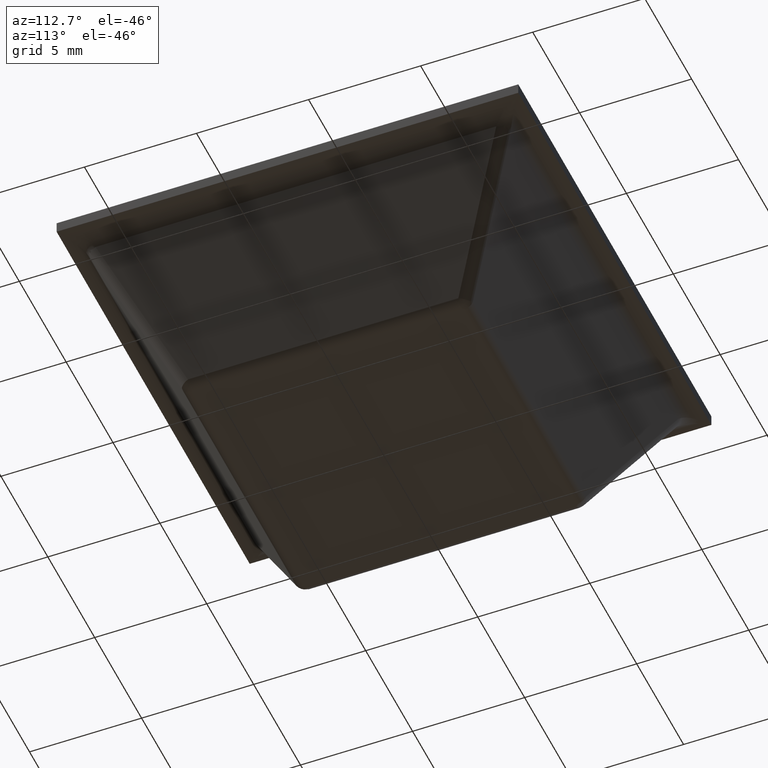
[diagram: clean part render]
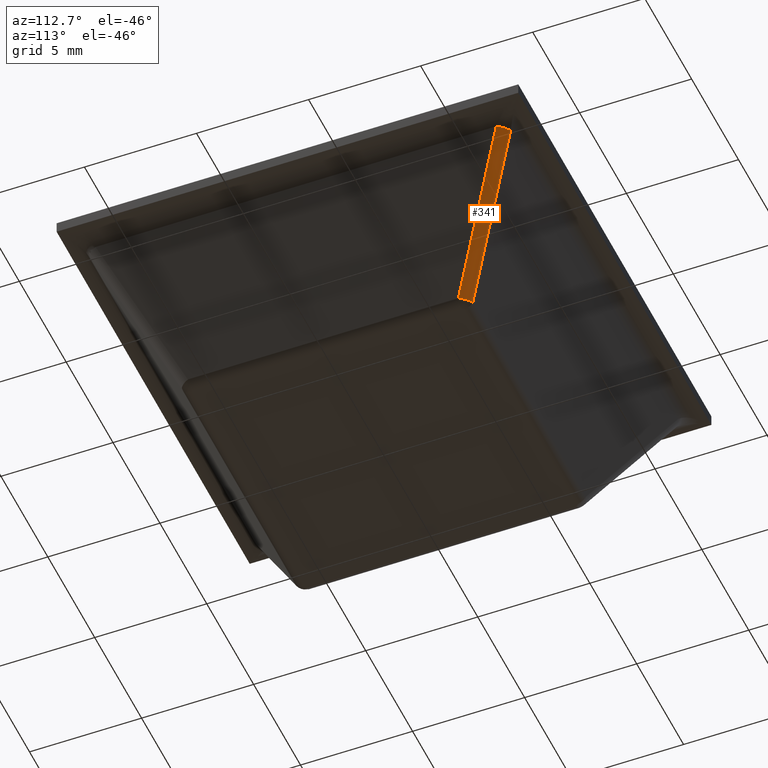
[diagram: same view with one face highlighted and labeled with its STEP entity id]
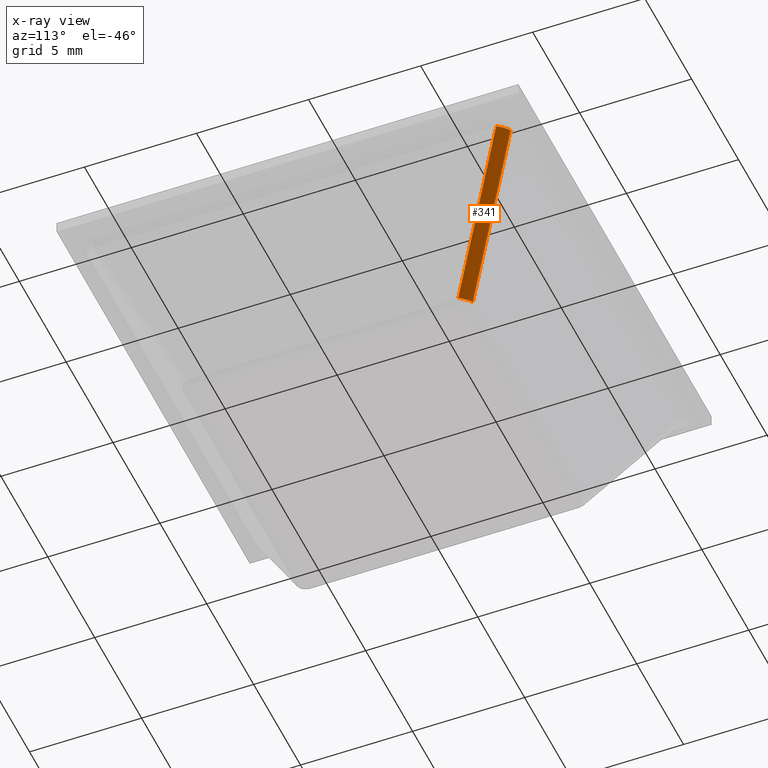
[diagram: x-ray of the same camera — body ghosted, the highlighted face saturated]
A machine part, auxiliary view. The second image highlights one B-rep face of the part: STEP entity #341.
The next image is the same camera in x-ray: the body ghosted, the highlighted face saturated — about 0% of this face is hidden behind the body in this view.
In plain terms, the highlighted face is a freeform B-spline surface patch.
Its self-contained STEP definition (entity closure, byte-faithful):
#251=CARTESIAN_POINT('',(6.484618936203209,6.031465045455779,0.288690863187423));
#252=VERTEX_POINT('',#251);
#266=CARTESIAN_POINT('',(6.031465045455890,6.484618936203209,0.288690863187423));
#267=VERTEX_POINT('',#266);
#281=CARTESIAN_POINT('',(6.031465045455890,6.484618936203209,0.288690863187423));
#282=CARTESIAN_POINT('',(6.415947910680401,6.415947910680295,0.141425378756760));
#283=CARTESIAN_POINT('',(6.484618936203209,6.031465045455779,0.288690863187423));
#291=(BOUNDED_CURVE()B_SPLINE_CURVE(2,(#281,#282,#283),.UNSPECIFIED.,.F.,.U.)CURVE()GEOMETRIC_REPRESENTATION_ITEM()QUASI_UNIFORM_CURVE()RATIONAL_B_SPLINE_CURVE((1.0,0.767660799182123,1.0))REPRESENTATION_ITEM(''));
#292=EDGE_CURVE('',#267,#252,#291,.T.);
#297=CARTESIAN_POINT('',(9.466566985900785,8.996691627693897,6.684075282392934));
#298=CARTESIAN_POINT('',(6.412475554821346,5.942600196614457,0.134555296801747));
#299=CARTESIAN_POINT('',(9.404015585474177,9.419675014113311,6.516003081326400));
#300=CARTESIAN_POINT('',(6.349924154394739,6.365583583033868,-0.033516904264786));
#301=CARTESIAN_POINT('',(8.981687881144458,9.468544639873970,6.690149449325035));
#302=CARTESIAN_POINT('',(5.927596450065020,6.414453208794525,0.140629463733846));
#310=(BOUNDED_SURFACE()B_SPLINE_SURFACE(1,2,((#297,#299,#301),(#298,#300,#302)),.UNSPECIFIED.,.F.,.F.,.U.)B_SPLINE_SURFACE_WITH_KNOTS((2,2),(3,3),(0.0,7.845454797552792),(0.0,0.989248217878956),.UNSPECIFIED.)GEOMETRIC_REPRESENTATION_ITEM()RATIONAL_B_SPLINE_SURFACE(((1.0,0.734242128086986,0.994285258528478),(1.0,0.734242128086986,0.994285258528478)))REPRESENTATION_ITEM('')SURFACE());
#311=CARTESIAN_POINT('',(8.938393236846100,9.391547127593508,6.522618273625180));
#312=VERTEX_POINT('',#311);
#313=CARTESIAN_POINT('',(9.391547127593508,8.938393236846089,6.522618273625180));
#314=VERTEX_POINT('',#313);
#315=CARTESIAN_POINT('',(8.938393236846105,9.391547127593514,6.522618273625193));
#316=CARTESIAN_POINT('',(9.322876102070593,9.322876102070595,6.375352789194563));
#317=CARTESIAN_POINT('',(9.391547127593505,8.938393236846100,6.522618273625175));
#325=(BOUNDED_CURVE()B_SPLINE_CURVE(2,(#315,#316,#317),.UNSPECIFIED.,.F.,.U.)CURVE()GEOMETRIC_REPRESENTATION_ITEM()QUASI_UNIFORM_CURVE()RATIONAL_B_SPLINE_CURVE((1.0,0.767660799182148,1.0))REPRESENTATION_ITEM(''));
#326=EDGE_CURVE('',#312,#314,#325,.T.);
#327=ORIENTED_EDGE('',*,*,#326,.T.);
#328=CARTESIAN_POINT('',(6.484618936203209,6.031465045455779,0.288690863187423));
#329=CARTESIAN_POINT('',(9.391547127593508,8.938393236846089,6.522618273625180));
#330=QUASI_UNIFORM_CURVE('',1,(#328,#329),.UNSPECIFIED.,.F.,.U.);
#331=EDGE_CURVE('',#252,#314,#330,.T.);
#332=ORIENTED_EDGE('',*,*,#331,.F.);
#333=ORIENTED_EDGE('',*,*,#292,.F.);
#334=CARTESIAN_POINT('',(8.938393236846100,9.391547127593508,6.522618273625180));
#335=CARTESIAN_POINT('',(6.031465045455890,6.484618936203209,0.288690863187423));
#336=QUASI_UNIFORM_CURVE('',1,(#334,#335),.UNSPECIFIED.,.F.,.U.);
#337=EDGE_CURVE('',#312,#267,#336,.T.);
#338=ORIENTED_EDGE('',*,*,#337,.F.);
#339=EDGE_LOOP('',(#327,#332,#333,#338));
#340=FACE_OUTER_BOUND('',#339,.T.);
#341=ADVANCED_FACE('',(#340),#310,.T.);